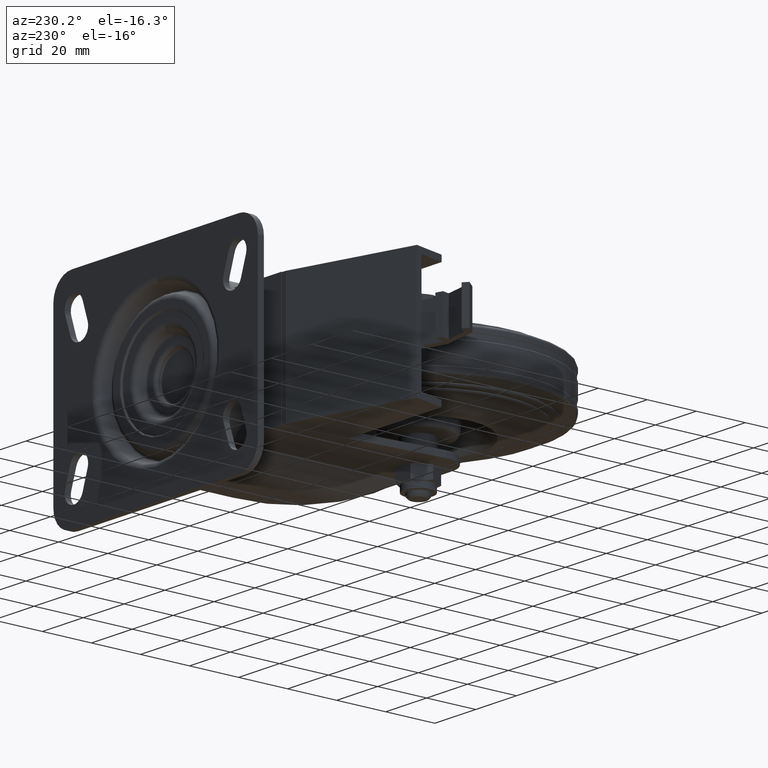
[diagram: clean part render]
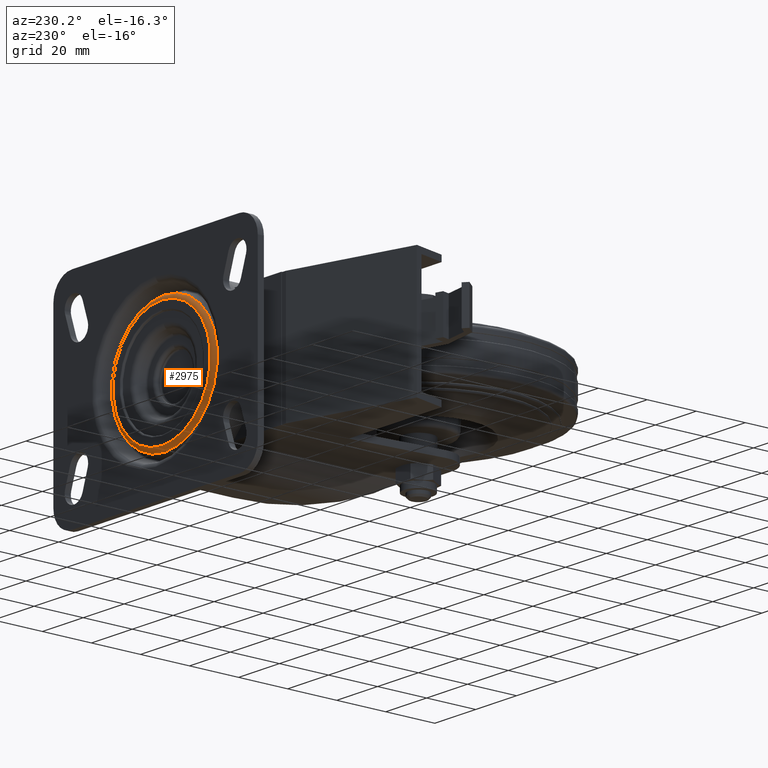
[diagram: same view with one face highlighted and labeled with its STEP entity id]
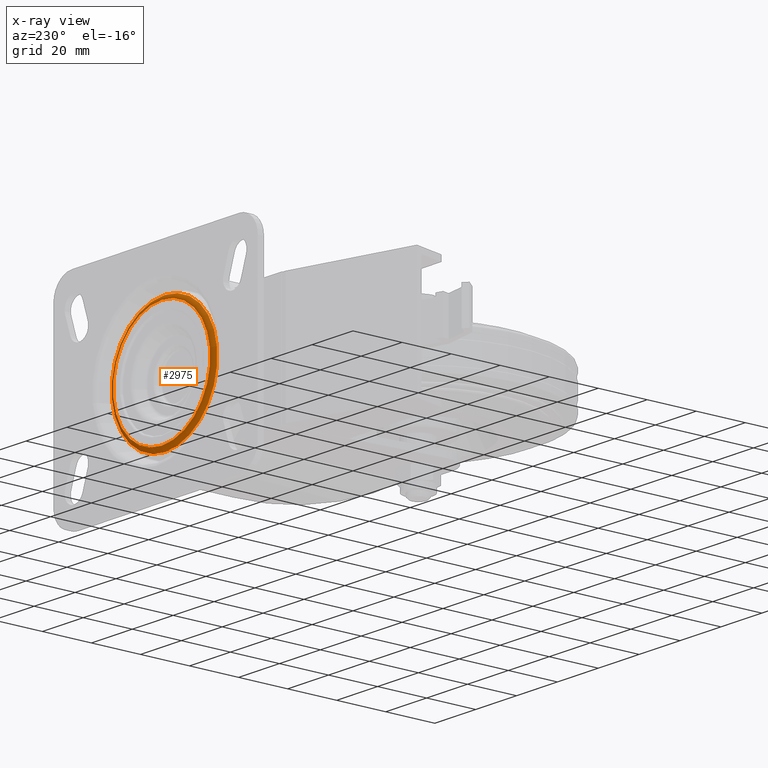
[diagram: x-ray of the same camera — body ghosted, the highlighted face saturated]
A machine part, auxiliary view. The second image highlights one B-rep face of the part: STEP entity #2975.
The next image is the same camera in x-ray: the body ghosted, the highlighted face saturated — about 0% of this face is hidden behind the body in this view.
In plain terms, the highlighted toroidal blend (fillet) surface has major radius 23.8023 mm and minor (blend) radius 2 mm.
Its self-contained STEP definition (entity closure, byte-faithful):
#25=TOROIDAL_SURFACE('',#3364,23.8022887136805,1.9999999999999);
#756=FACE_OUTER_BOUND('',#962,.T.);
#962=EDGE_LOOP('',(#2455,#2456,#2457,#2458));
#1156=CIRCLE('',#3363,25.6685468227069);
#1157=CIRCLE('',#3365,1.9999999999999);
#1158=CIRCLE('',#3366,23.8022887136805);
#1457=VERTEX_POINT('',#5099);
#1458=VERTEX_POINT('',#5103);
#1812=EDGE_CURVE('',#1457,#1457,#1156,.T.);
#1813=EDGE_CURVE('',#1457,#1458,#1157,.T.);
#1814=EDGE_CURVE('',#1458,#1458,#1158,.T.);
#2455=ORIENTED_EDGE('',*,*,#1812,.F.);
#2456=ORIENTED_EDGE('',*,*,#1813,.T.);
#2457=ORIENTED_EDGE('',*,*,#1814,.T.);
#2458=ORIENTED_EDGE('',*,*,#1813,.F.);
#2975=ADVANCED_FACE('',(#756),#25,.T.);
#3363=AXIS2_PLACEMENT_3D('',#5101,#4038,#4039);
#3364=AXIS2_PLACEMENT_3D('',#5102,#4040,#4041);
#3365=AXIS2_PLACEMENT_3D('',#5104,#4042,#4043);
#3366=AXIS2_PLACEMENT_3D('',#5105,#4044,#4045);
#4038=DIRECTION('center_axis',(0.,-1.,0.));
#4039=DIRECTION('ref_axis',(0.,0.,-1.));
#4040=DIRECTION('center_axis',(0.,-1.,0.));
#4041=DIRECTION('ref_axis',(0.,0.,-1.));
#4042=DIRECTION('center_axis',(-1.,0.,-1.72112332660864E-16));
#4043=DIRECTION('ref_axis',(-1.72112332660864E-16,0.,1.));
#4044=DIRECTION('center_axis',(0.,-1.,0.));
#4045=DIRECTION('ref_axis',(0.,0.,-1.));
#5099=CARTESIAN_POINT('',(35.,74.2190832152771,25.6685468227069));
#5101=CARTESIAN_POINT('Origin',(35.,74.2190832152771,0.));
#5102=CARTESIAN_POINT('Origin',(35.,73.5000000000001,0.));
#5103=CARTESIAN_POINT('',(35.,75.5,23.8022887136805));
#5104=CARTESIAN_POINT('Origin',(35.,73.5000000000001,23.8022887136805));
#5105=CARTESIAN_POINT('Origin',(35.,75.5,0.));